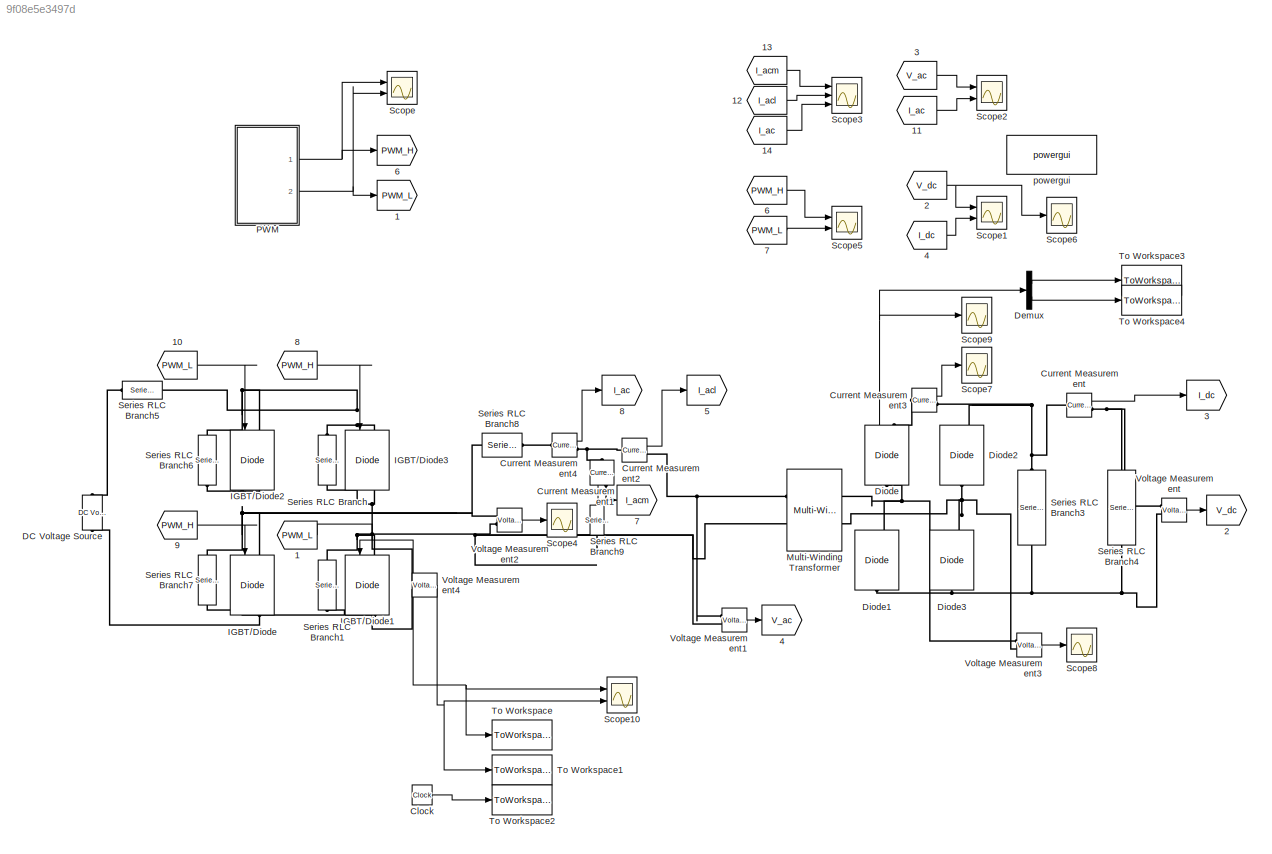
MODEL slx_9f08e5e3497d
KIND model
CONFIG AbsTol = auto
CONFIG EnableMultiTasking = off
CONFIG FixedStep = auto
CONFIG MaxStep = 1e-4
CONFIG MinStep = auto
CONFIG RelTol = 1e-3
CONFIG SampleTimeConstraint = Unconstrained
CONFIG Solver = ode23
CONFIG SolverName = ode23
CONFIG StartTime = 0.0
CONFIG StopTime = 0.05
BLOCK [From]       1
  GotoTag = PWM_L
  TagVisibility = global
BLOCK [From]       10
  GotoTag = PWM_L
  TagVisibility = global
BLOCK [From]       11
  GotoTag = I_ac
  TagVisibility = global
BLOCK [From]       12
  GotoTag = I_acl
  TagVisibility = global
BLOCK [From]       13
  GotoTag = I_acm
  TagVisibility = global
BLOCK [From]       14
  GotoTag = I_ac
  TagVisibility = global
BLOCK [From]       2
  GotoTag = V_dc
  TagVisibility = global
BLOCK [From]       3
  GotoTag = V_ac
  TagVisibility = global
BLOCK [From]       4
  GotoTag = I_dc
  TagVisibility = global
BLOCK [From]       6
  GotoTag = PWM_H
  TagVisibility = global
BLOCK [From]       7
  GotoTag = PWM_L
  TagVisibility = global
BLOCK [From]       8
  GotoTag = PWM_H
  TagVisibility = global
BLOCK [From]       9
  GotoTag = PWM_H
  TagVisibility = global
BLOCK [Goto]   1
  GotoTag = PWM_L
  TagVisibility = global
BLOCK [Goto]   2
  GotoTag = V_dc
  TagVisibility = global
BLOCK [Goto]   3
  GotoTag = I_dc
  TagVisibility = global
BLOCK [Goto]   4
  GotoTag = V_ac
  TagVisibility = global
BLOCK [Goto]   5
  GotoTag = I_acl
  TagVisibility = global
BLOCK [Goto]   6
  GotoTag = PWM_H
  TagVisibility = global
BLOCK [Goto]   7
  GotoTag = I_acm
  TagVisibility = global
BLOCK [Goto]   8
  GotoTag = I_ac
  TagVisibility = global
BLOCK [Clock] Clock
BLOCK [Reference] Current Measurement  REF=powerlib/Measurements/Current Measurement
  Ports = [0, 1, 0, 0, 0, 1, 1]
  SourceBlock = powerlib/Measurements/Current Measurement
  SourceProductBaseCode = PS
  SourceProductName = Simscape Electrical
  SourceType = Current Measurement
  UserDataPersistent = on
BLOCK [Reference] Current Measurement1  REF=powerlib/Measurements/Current Measurement
  Ports = [0, 1, 0, 0, 0, 1, 1]
  SourceBlock = powerlib/Measurements/Current Measurement
  SourceProductBaseCode = PS
  SourceProductName = Simscape Electrical
  SourceType = Current Measurement
  UserDataPersistent = on
BLOCK [Reference] Current Measurement2  REF=powerlib/Measurements/Current Measurement
  Ports = [0, 1, 0, 0, 0, 1, 1]
  SourceBlock = powerlib/Measurements/Current Measurement
  SourceProductBaseCode = PS
  SourceProductName = Simscape Electrical
  SourceType = Current Measurement
  UserDataPersistent = on
BLOCK [Reference] Current Measurement3  REF=powerlib/Measurements/Current Measurement
  Ports = [0, 1, 0, 0, 0, 1, 1]
  SourceBlock = powerlib/Measurements/Current Measurement
  SourceProductBaseCode = PS
  SourceProductName = Simscape Electrical
  SourceType = Current Measurement
  UserDataPersistent = on
BLOCK [Reference] Current Measurement4  REF=powerlib/Measurements/Current Measurement
  Ports = [0, 1, 0, 0, 0, 1, 1]
  SourceBlock = powerlib/Measurements/Current Measurement
  SourceProductBaseCode = PS
  SourceProductName = Simscape Electrical
  SourceType = Current Measurement
  UserDataPersistent = on
BLOCK [Reference] DC Voltage Source  REF=powerlib/Electrical
Sources/DC Voltage Source
  Ports = [0, 0, 0, 0, 0, 1, 1]
  SourceBlock = powerlib/Electrical\nSources/DC Voltage Source
  SourceProductBaseCode = PS
  SourceProductName = Simscape Electrical
  SourceType = DC Voltage Source
BLOCK [Demux] Demux
  DisplayOption = bar
  Outputs = 2
  Ports = [1, 2]
BLOCK [Reference] Diode  REF=powerlib/Power
Electronics/Diode
  Ports = [0, 1, 0, 0, 0, 1, 1]
  SourceBlock = powerlib/Power\nElectronics/Diode
  SourceProductBaseCode = PS
  SourceProductName = Simscape Electrical
  SourceType = Diode
BLOCK [Reference] Diode1  REF=powerlib/Power
Electronics/Diode
  Ports = [0, 1, 0, 0, 0, 1, 1]
  SourceBlock = powerlib/Power\nElectronics/Diode
  SourceProductBaseCode = PS
  SourceProductName = Simscape Electrical
  SourceType = Diode
BLOCK [Reference] Diode2  REF=powerlib/Power
Electronics/Diode
  Ports = [0, 1, 0, 0, 0, 1, 1]
  SourceBlock = powerlib/Power\nElectronics/Diode
  SourceProductBaseCode = PS
  SourceProductName = Simscape Electrical
  SourceType = Diode
BLOCK [Reference] Diode3  REF=powerlib/Power
Electronics/Diode
  Ports = [0, 1, 0, 0, 0, 1, 1]
  SourceBlock = powerlib/Power\nElectronics/Diode
  SourceProductBaseCode = PS
  SourceProductName = Simscape Electrical
  SourceType = Diode
BLOCK [Reference] IGBT//Diode  REF=powerlib/Power
Electronics/IGBT//Diode
  Ports = [1, 1, 0, 0, 0, 1, 1]
  SourceBlock = powerlib/Power\nElectronics/IGBT//Diode
  SourceProductBaseCode = PS
  SourceProductName = Simscape Power Systems
  SourceType = IGBT/Diode
BLOCK [Reference] IGBT//Diode1  REF=powerlib/Power
Electronics/IGBT//Diode
  Ports = [1, 1, 0, 0, 0, 1, 1]
  SourceBlock = powerlib/Power\nElectronics/IGBT//Diode
  SourceProductBaseCode = PS
  SourceProductName = Simscape Power Systems
  SourceType = IGBT/Diode
BLOCK [Reference] IGBT//Diode2  REF=powerlib/Power
Electronics/IGBT//Diode
  Ports = [1, 1, 0, 0, 0, 1, 1]
  SourceBlock = powerlib/Power\nElectronics/IGBT//Diode
  SourceProductBaseCode = PS
  SourceProductName = Simscape Power Systems
  SourceType = IGBT/Diode
BLOCK [Reference] IGBT//Diode3  REF=powerlib/Power
Electronics/IGBT//Diode
  Ports = [1, 1, 0, 0, 0, 1, 1]
  SourceBlock = powerlib/Power\nElectronics/IGBT//Diode
  SourceProductBaseCode = PS
  SourceProductName = Simscape Power Systems
  SourceType = IGBT/Diode
BLOCK [Reference] Multi-Winding Transformer  REF=powerlib/Elements/Multi-Winding
Transformer
  Ports = [0, 0, 0, 0, 0, 2, 2]
  SourceBlock = powerlib/Elements/Multi-Winding\nTransformer
  SourceProductBaseCode = PS
  SourceProductName = Simscape Power Systems
  SourceType = Multi-Winding Transformer
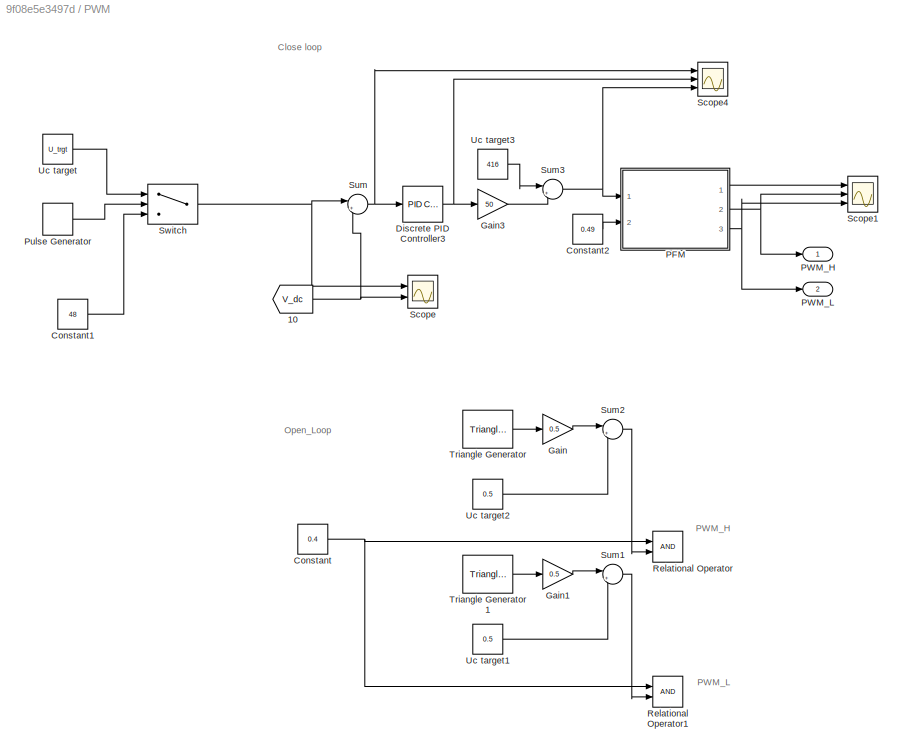
BLOCK [SubSystem] PWM
  Ports = [0, 2]
  RequestExecContextInheritance = off
BLOCK [From] PWM/      10
  GotoTag = V_dc
  TagVisibility = global
BLOCK [Constant] PWM/Constant
  Value = 0.4
BLOCK [Constant] PWM/Constant1
  Value = 48
BLOCK [Constant] PWM/Constant2
  Value = 0.49
BLOCK [Reference] PWM/Discrete PID Controller3  REF=simulink/Continuous/PID Controller
  Ports = [1, 1]
  SourceBlock = simulink/Continuous/PID Controller
  SourceProductBaseCode = SL
  SourceProductName = Simulink
  SourceType = PID 1dof
BLOCK [Gain] PWM/Gain
  Gain = 0.5
  OutDataTypeStr = Inherit: Inherit via internal rule
  ParamDataTypeStr = Inherit: Inherit via internal rule
  SaturateOnIntegerOverflow = off
BLOCK [Gain] PWM/Gain1
  Gain = 0.5
  OutDataTypeStr = Inherit: Inherit via internal rule
  ParamDataTypeStr = Inherit: Inherit via internal rule
  SaturateOnIntegerOverflow = off
BLOCK [Gain] PWM/Gain3
  Gain = 50
  OutDataTypeStr = Inherit: Inherit via internal rule
  ParamDataTypeStr = Inherit: Inherit via internal rule
  SaturateOnIntegerOverflow = off
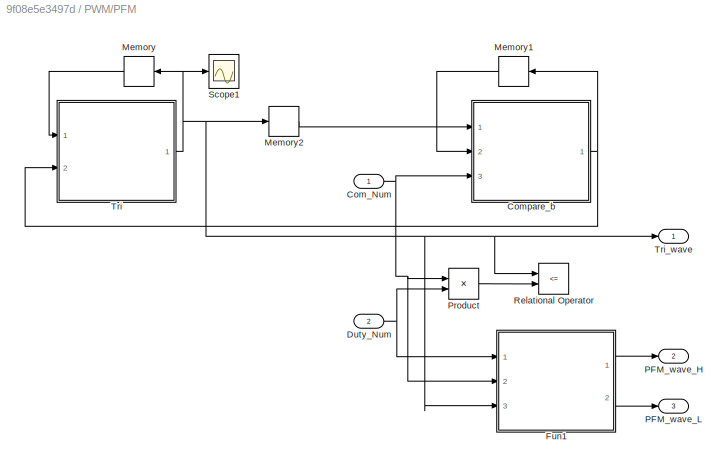
BLOCK [SubSystem] PWM/PFM
  Ports = [2, 3]
  RequestExecContextInheritance = off
BLOCK [Inport] PWM/PFM/Com_Num
  IconDisplay = Port number
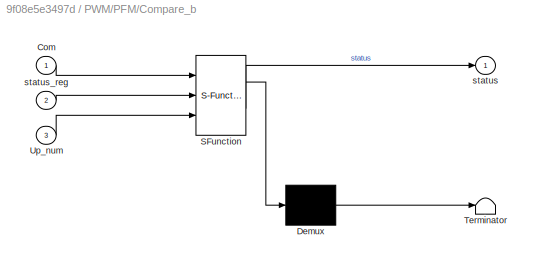
BLOCK [SubSystem] PWM/PFM/Compare_b
  ErrorFcn = Stateflow.Translate.translate
  PermitHierarchicalResolution = ExplicitOnly
  Ports = [3, 1]
  RequestExecContextInheritance = off
  SFBlockType = MATLAB Function
  TreatAsAtomicUnit = on
BLOCK [Demux] PWM/PFM/Compare_b/ Demux 
  Outputs = 1
  Ports = [1, 1]
BLOCK [S-Function] PWM/PFM/Compare_b/ SFunction 
  EnableBusSupport = on
  FunctionName = sf_sfun
  PortCounts = [3 2]
  Ports = [3, 2]
  SFcnIsStateOwnerBlock = off
  SFunctionDeploymentMode = off
  Tag = Stateflow S-Function DCACDC 2
BLOCK [Terminator] PWM/PFM/Compare_b/ Terminator 
BLOCK [Inport] PWM/PFM/Compare_b/Com
  IconDisplay = Port number
BLOCK [Inport] PWM/PFM/Compare_b/Up_num
  IconDisplay = Port number
  Port = 3
BLOCK [Outport] PWM/PFM/Compare_b/status
  IconDisplay = Port number
BLOCK [Inport] PWM/PFM/Compare_b/status_reg
  IconDisplay = Port number
  Port = 2
BLOCK [Inport] PWM/PFM/Duty_Num
  IconDisplay = Port number
  Port = 2
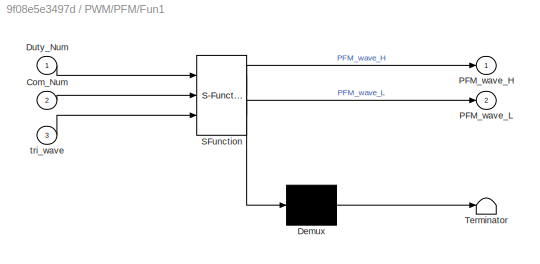
BLOCK [SubSystem] PWM/PFM/Fun1
  ErrorFcn = Stateflow.Translate.translate
  PermitHierarchicalResolution = ExplicitOnly
  Ports = [3, 2]
  RequestExecContextInheritance = off
  SFBlockType = MATLAB Function
  TreatAsAtomicUnit = on
BLOCK [Demux] PWM/PFM/Fun1/ Demux 
  Outputs = 1
  Ports = [1, 1]
BLOCK [S-Function] PWM/PFM/Fun1/ SFunction 
  EnableBusSupport = on
  FunctionName = sf_sfun
  PortCounts = [3 3]
  Ports = [3, 3]
  SFcnIsStateOwnerBlock = off
  SFunctionDeploymentMode = off
  Tag = Stateflow S-Function DCACDC 3
BLOCK [Terminator] PWM/PFM/Fun1/ Terminator 
BLOCK [Inport] PWM/PFM/Fun1/Com_Num
  IconDisplay = Port number
  Port = 2
BLOCK [Inport] PWM/PFM/Fun1/Duty_Num
  IconDisplay = Port number
BLOCK [Outport] PWM/PFM/Fun1/PFM_wave_H
  IconDisplay = Port number
BLOCK [Outport] PWM/PFM/Fun1/PFM_wave_L
  IconDisplay = Port number
  Port = 2
BLOCK [Inport] PWM/PFM/Fun1/tri_wave
  IconDisplay = Port number
  Port = 3
BLOCK [Memory] PWM/PFM/Memory
BLOCK [Memory] PWM/PFM/Memory1
BLOCK [Memory] PWM/PFM/Memory2
BLOCK [Outport] PWM/PFM/PFM_wave_H
  IconDisplay = Port number
  Port = 2
BLOCK [Outport] PWM/PFM/PFM_wave_L
  IconDisplay = Port number
  Port = 3
BLOCK [Product] PWM/PFM/Product
  InputSameDT = off
  OutDataTypeStr = Inherit: Inherit via internal rule
  Ports = [2, 1]
  RndMeth = Floor
  SaturateOnIntegerOverflow = off
BLOCK [RelationalOperator] PWM/PFM/Relational Operator
  InputSameDT = off
  Operator = <=
  OutDataTypeStr = boolean
  Ports = [2, 1]
  RndMeth = Simplest
BLOCK [Scope] PWM/PFM/Scope1
  Floating = off
  NumInputPorts = 1
  Ports = [1]
  ScopeSpecificationString = Simulink.scopes.TimeScopeBlockCfg('CurrentConfiguration', extmgr.ConfigurationSet(extmgr.Configuration('Core','General UI',true),extmgr.Configuration('Core','Source UI',true),extmgr.Configuration('Sources','WiredSimulink',true,'DataLoggingVariableName','ScopeData1'),extmgr.Configuration('Visuals','Time Domain',true,'SerializedDisplays',{struct('MinYLimReal','-188.75','MaxYLimReal','1688.75','YLabe...<+1534ch>
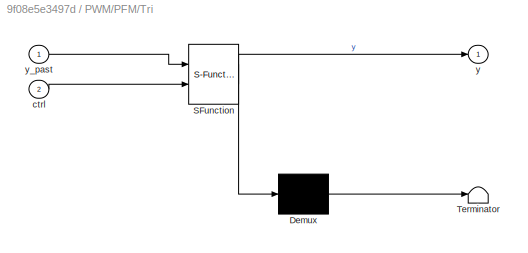
BLOCK [SubSystem] PWM/PFM/Tri
  ErrorFcn = Stateflow.Translate.translate
  PermitHierarchicalResolution = ExplicitOnly
  Ports = [2, 1]
  RequestExecContextInheritance = off
  SFBlockType = MATLAB Function
  TreatAsAtomicUnit = on
BLOCK [Demux] PWM/PFM/Tri/ Demux 
  Outputs = 1
  Ports = [1, 1]
BLOCK [S-Function] PWM/PFM/Tri/ SFunction 
  EnableBusSupport = on
  FunctionName = sf_sfun
  PortCounts = [2 2]
  Ports = [2, 2]
  SFcnIsStateOwnerBlock = off
  SFunctionDeploymentMode = off
  Tag = Stateflow S-Function DCACDC 1
BLOCK [Terminator] PWM/PFM/Tri/ Terminator 
BLOCK [Inport] PWM/PFM/Tri/ctrl
  IconDisplay = Port number
  Port = 2
BLOCK [Outport] PWM/PFM/Tri/y
  IconDisplay = Port number
BLOCK [Inport] PWM/PFM/Tri/y_past
  IconDisplay = Port number
BLOCK [Outport] PWM/PFM/Tri_wave
  IconDisplay = Port number
BLOCK [Outport] PWM/PWM_H
  IconDisplay = Port number
BLOCK [Outport] PWM/PWM_L
  IconDisplay = Port number
  Port = 2
BLOCK [DiscretePulseGenerator] PWM/Pulse Generator
  Period = 0.005
  Ports = [0, 1]
  PulseType = Time based
  PulseWidth = 50
BLOCK [RelationalOperator] PWM/Relational Operator
  InputSameDT = off
  OutDataTypeStr = boolean
  Ports = [2, 1]
  RndMeth = Simplest
BLOCK [RelationalOperator] PWM/Relational Operator1
  InputSameDT = off
  OutDataTypeStr = boolean
  Ports = [2, 1]
  RndMeth = Simplest
BLOCK [Scope] PWM/Scope
  Floating = off
  NumInputPorts = 2
  Ports = [2]
  ScopeSpecificationString = Simulink.scopes.TimeScopeBlockCfg('CurrentConfiguration', extmgr.ConfigurationSet(extmgr.Configuration('Core','General UI',true,'FigureColor',[1 1 1]),extmgr.Configuration('Core','Source UI',true),extmgr.Configuration('Sources','WiredSimulink',true,'DataLoggingVariableName','ScopeData1'),extmgr.Configuration('Visuals','Time Domain',true,'SerializedDisplays',{struct('MinYLimReal','0.00000','MaxYLim...<+2298ch>
BLOCK [Scope] PWM/Scope1
  Floating = off
  NumInputPorts = 3
  Ports = [3]
  ScopeSpecificationString = Simulink.scopes.TimeScopeBlockCfg('CurrentConfiguration', extmgr.ConfigurationSet(extmgr.Configuration('Core','General UI',true),extmgr.Configuration('Core','Source UI',true),extmgr.Configuration('Sources','WiredSimulink',true,'DataLoggingVariableName','ScopeData2'),extmgr.Configuration('Visuals','Time Domain',true,'SerializedDisplays',{struct('MinYLimReal','-188.75','MaxYLimReal','1688.75','YLabe...<+2541ch>
BLOCK [Scope] PWM/Scope4
  Floating = off
  NumInputPorts = 3
  Ports = [3]
  ScopeSpecificationString = Simulink.scopes.TimeScopeBlockCfg('CurrentConfiguration', extmgr.ConfigurationSet(extmgr.Configuration('Core','General UI',true),extmgr.Configuration('Core','Source UI',true),extmgr.Configuration('Sources','WiredSimulink',true,'DataLoggingVariableName','ScopeData6'),extmgr.Configuration('Visuals','Time Domain',true,'SerializedDisplays',{struct('MinYLimReal','-7.4483','MaxYLimReal','67.49426','YLab...<+2812ch>
BLOCK [Sum] PWM/Sum
  IconShape = round
  InputSameDT = off
  Inputs = |+-
  OutDataTypeStr = Inherit: Inherit via internal rule
  Ports = [2, 1]
  SaturateOnIntegerOverflow = off
BLOCK [Sum] PWM/Sum1
  IconShape = round
  InputSameDT = off
  Inputs = |++
  OutDataTypeStr = Inherit: Inherit via internal rule
  Ports = [2, 1]
  SaturateOnIntegerOverflow = off
BLOCK [Sum] PWM/Sum2
  IconShape = round
  InputSameDT = off
  Inputs = |++
  OutDataTypeStr = Inherit: Inherit via internal rule
  Ports = [2, 1]
  SaturateOnIntegerOverflow = off
BLOCK [Sum] PWM/Sum3
  IconShape = round
  InputSameDT = off
  Inputs = |++
  OutDataTypeStr = Inherit: Inherit via internal rule
  Ports = [2, 1]
  SaturateOnIntegerOverflow = off
BLOCK [Switch] PWM/Switch
  Criteria = u2 > Threshold
  InputSameDT = off
  SaturateOnIntegerOverflow = off
BLOCK [Reference] PWM/Triangle Generator  REF=powerlib_meascontrol/Pulse & Signal
Generators/Triangle
Generator
  Ports = [0, 1]
  SourceBlock = powerlib_meascontrol/Pulse & Signal\nGenerators/Triangle\nGenerator
  SourceProductBaseCode = PS
  SourceProductName = Simscape Electrical
  SourceType = Triangle Generator
BLOCK [Reference] PWM/Triangle Generator1  REF=powerlib_meascontrol/Pulse & Signal
Generators/Triangle
Generator
  Ports = [0, 1]
  SourceBlock = powerlib_meascontrol/Pulse & Signal\nGenerators/Triangle\nGenerator
  SourceProductBaseCode = PS
  SourceProductName = Simscape Electrical
  SourceType = Triangle Generator
BLOCK [Constant] PWM/Uc target
  Value = U_trgt
BLOCK [Constant] PWM/Uc target1
  Value = 0.5
BLOCK [Constant] PWM/Uc target2
  Value = 0.5
BLOCK [Constant] PWM/Uc target3
  Value = 416
BLOCK [Scope] Scope
  Floating = off
  NumInputPorts = 2
  Ports = [2]
  ScopeSpecificationString = Simulink.scopes.TimeScopeBlockCfg('CurrentConfiguration', extmgr.ConfigurationSet(extmgr.Configuration('Core','General UI',true),extmgr.Configuration('Core','Source UI',true),extmgr.Configuration('Sources','WiredSimulink',true),extmgr.Configuration('Visuals','Time Domain',true,'SerializedDisplays',{struct('MinYLimReal','-0.125','MaxYLimReal','1.125','YLabelReal','','MinYLimMag','0.00000','MaxYLimM...<+2063ch>
BLOCK [Scope] Scope1
  Floating = off
  NumInputPorts = 2
  Ports = [2]
  ScopeSpecificationString = Simulink.scopes.TimeScopeBlockCfg('CurrentConfiguration', extmgr.ConfigurationSet(extmgr.Configuration('Core','General UI',true),extmgr.Configuration('Core','Source UI',true),extmgr.Configuration('Sources','WiredSimulink',true,'DataLoggingVariableName','ScopeData1'),extmgr.Configuration('Visuals','Time Domain',true,'SerializedDisplays',{struct('MinYLimReal','-6.19705','MaxYLimReal','55.77345','YLa...<+2459ch>
BLOCK [Scope] Scope10
  Floating = off
  NumInputPorts = 2
  Ports = [2]
  ScopeSpecificationString = Simulink.scopes.TimeScopeBlockCfg('CurrentConfiguration', extmgr.ConfigurationSet(extmgr.Configuration('Core','General UI',true),extmgr.Configuration('Core','Source UI',true),extmgr.Configuration('Sources','WiredSimulink',true,'DataLoggingVariableName','ScopeData2'),extmgr.Configuration('Visuals','Time Domain',true,'SerializedDisplays',{struct('MinYLimReal','-1.7427','MaxYLimReal','6.00146','YLabe...<+1930ch>
BLOCK [Scope] Scope2
  Floating = off
  NumInputPorts = 2
  Ports = [2]
  ScopeSpecificationString = Simulink.scopes.TimeScopeBlockCfg('CurrentConfiguration', extmgr.ConfigurationSet(extmgr.Configuration('Core','General UI',true),extmgr.Configuration('Core','Source UI',true),extmgr.Configuration('Sources','WiredSimulink',true,'DataLoggingVariableName','ScopeData2'),extmgr.Configuration('Visuals','Time Domain',true,'SerializedDisplays',{struct('MinYLimReal','-1946.40816','MaxYLimReal','1812.43053'...<+2522ch>
BLOCK [Scope] Scope3
  Floating = off
  NumInputPorts = 3
  Ports = [3]
  ScopeSpecificationString = Simulink.scopes.TimeScopeBlockCfg('CurrentConfiguration', extmgr.ConfigurationSet(extmgr.Configuration('Core','General UI',true),extmgr.Configuration('Core','Source UI',true),extmgr.Configuration('Sources','WiredSimulink',true,'DataLoggingVariableName','ScopeData1'),extmgr.Configuration('Visuals','Time Domain',true,'SerializedDisplays',{struct('MinYLimReal','-6.77319','MaxYLimReal','6.99202','YLab...<+3304ch>
BLOCK [Scope] Scope4
  Floating = off
  NumInputPorts = 1
  Ports = [1]
  ScopeSpecificationString = Simulink.scopes.TimeScopeBlockCfg('CurrentConfiguration', extmgr.ConfigurationSet(extmgr.Configuration('Core','General UI',true),extmgr.Configuration('Core','Source UI',true),extmgr.Configuration('Sources','WiredSimulink',true,'DataLoggingVariableName','ScopeData1'),extmgr.Configuration('Visuals','Time Domain',true,'SerializedDisplays',{struct('MinYLimReal','-500.2451','MaxYLimReal','500.2451','YL...<+1560ch>
BLOCK [Scope] Scope5
  Floating = off
  NumInputPorts = 2
  Ports = [2]
  ScopeSpecificationString = Simulink.scopes.TimeScopeBlockCfg('CurrentConfiguration', extmgr.ConfigurationSet(extmgr.Configuration('Core','General UI',true),extmgr.Configuration('Core','Source UI',true),extmgr.Configuration('Sources','WiredSimulink',true,'DataLoggingVariableName','ScopeData1'),extmgr.Configuration('Visuals','Time Domain',true,'SerializedDisplays',{struct('MinYLimReal','-0.125','MaxYLimReal','1.125','YLabelRe...<+2014ch>
BLOCK [Scope] Scope6
  Floating = off
  NumInputPorts = 1
  Ports = [1]
  ScopeSpecificationString = Simulink.scopes.TimeScopeBlockCfg('CurrentConfiguration', extmgr.ConfigurationSet(extmgr.Configuration('Core','General UI',true,'FigureColor',[1 1 1]),extmgr.Configuration('Core','Source UI',true),extmgr.Configuration('Sources','WiredSimulink',true,'DataLoggingVariableName','ScopeData1'),extmgr.Configuration('Visuals','Time Domain',true,'SerializedDisplays',{struct('MinYLimReal','-6.14579','MaxYLi...<+2081ch>
BLOCK [Scope] Scope7
  Floating = off
  NumInputPorts = 1
  Ports = [1]
  ScopeSpecificationString = Simulink.scopes.TimeScopeBlockCfg('CurrentConfiguration', extmgr.ConfigurationSet(extmgr.Configuration('Core','General UI',true),extmgr.Configuration('Core','Source UI',true),extmgr.Configuration('Sources','WiredSimulink',true,'DataLoggingVariableName','ScopeData2'),extmgr.Configuration('Visuals','Time Domain',true,'SerializedDisplays',{struct('MinYLimReal','-1.82353','MaxYLimReal','15.85756','YLa...<+1865ch>
BLOCK [Scope] Scope8
  Floating = off
  NumInputPorts = 1
  Ports = [1]
  ScopeSpecificationString = Simulink.scopes.TimeScopeBlockCfg('CurrentConfiguration', extmgr.ConfigurationSet(extmgr.Configuration('Core','General UI',true),extmgr.Configuration('Core','Source UI',true),extmgr.Configuration('Sources','WiredSimulink',true,'DataLoggingVariableName','ScopeData3'),extmgr.Configuration('Visuals','Time Domain',true,'SerializedDisplays',{struct('MinYLimReal','-180.78103','MaxYLimReal','180.70755','...<+1567ch>
BLOCK [Scope] Scope9
  Floating = off
  NumInputPorts = 1
  Ports = [1]
  ScopeSpecificationString = Simulink.scopes.TimeScopeBlockCfg('CurrentConfiguration', extmgr.ConfigurationSet(extmgr.Configuration('Core','General UI',true),extmgr.Configuration('Core','Source UI',true),extmgr.Configuration('Sources','WiredSimulink',true,'DataLoggingVariableName','ScopeData1'),extmgr.Configuration('Visuals','Time Domain',true,'SerializedDisplays',{struct('MinYLimReal','-57.63777','MaxYLimReal','21.90799','YL...<+1896ch>
BLOCK [Reference] Series RLC Branch  REF=powerlib/Elements/Series RLC Branch
  Ports = [0, 0, 0, 0, 0, 1, 1]
  SourceBlock = powerlib/Elements/Series RLC Branch
  SourceProductBaseCode = PS
  SourceProductName = Simscape Electrical
  SourceType = Series RLC Branch
BLOCK [Reference] Series RLC Branch1  REF=powerlib/Elements/Series RLC Branch
  Ports = [0, 0, 0, 0, 0, 1, 1]
  SourceBlock = powerlib/Elements/Series RLC Branch
  SourceProductBaseCode = PS
  SourceProductName = Simscape Electrical
  SourceType = Series RLC Branch
BLOCK [Reference] Series RLC Branch3  REF=powerlib/Elements/Series RLC Branch
  Ports = [0, 0, 0, 0, 0, 1, 1]
  SourceBlock = powerlib/Elements/Series RLC Branch
  SourceProductBaseCode = PS
  SourceProductName = Simscape Electrical
  SourceType = Series RLC Branch
BLOCK [Reference] Series RLC Branch4  REF=powerlib/Elements/Series RLC Branch
  Ports = [0, 0, 0, 0, 0, 1, 1]
  SourceBlock = powerlib/Elements/Series RLC Branch
  SourceProductBaseCode = PS
  SourceProductName = Simscape Electrical
  SourceType = Series RLC Branch
BLOCK [Reference] Series RLC Branch5  REF=powerlib/Elements/Series RLC Branch
  Ports = [0, 0, 0, 0, 0, 1, 1]
  SourceBlock = powerlib/Elements/Series RLC Branch
  SourceProductBaseCode = PS
  SourceProductName = Simscape Electrical
  SourceType = Series RLC Branch
BLOCK [Reference] Series RLC Branch6  REF=powerlib/Elements/Series RLC Branch
  Ports = [0, 0, 0, 0, 0, 1, 1]
  SourceBlock = powerlib/Elements/Series RLC Branch
  SourceProductBaseCode = PS
  SourceProductName = Simscape Electrical
  SourceType = Series RLC Branch
BLOCK [Reference] Series RLC Branch7  REF=powerlib/Elements/Series RLC Branch
  Ports = [0, 0, 0, 0, 0, 1, 1]
  SourceBlock = powerlib/Elements/Series RLC Branch
  SourceProductBaseCode = PS
  SourceProductName = Simscape Electrical
  SourceType = Series RLC Branch
BLOCK [Reference] Series RLC Branch8  REF=powerlib/Elements/Series RLC Branch
  Ports = [0, 0, 0, 0, 0, 1, 1]
  SourceBlock = powerlib/Elements/Series RLC Branch
  SourceProductBaseCode = PS
  SourceProductName = Simscape Electrical
  SourceType = Series RLC Branch
BLOCK [Reference] Series RLC Branch9  REF=powerlib/Elements/Series RLC Branch
  Ports = [0, 0, 0, 0, 0, 1, 1]
  SourceBlock = powerlib/Elements/Series RLC Branch
  SourceProductBaseCode = PS
  SourceProductName = Simscape Electrical
  SourceType = Series RLC Branch
BLOCK [ToWorkspace] To Workspace
  FixptAsFi = on
  MaxDataPoints = inf
  Ports = [1]
  SampleTime = -1
  Save2DSignal = 3-D array (concatenate along third dimension)
  SaveFormat = Timeseries
  VariableName = tri
BLOCK [ToWorkspace] To Workspace1
  FixptAsFi = on
  MaxDataPoints = inf
  Ports = [1]
  SampleTime = -1
  Save2DSignal = 3-D array (concatenate along third dimension)
  SaveFormat = Timeseries
  VariableName = voltage
BLOCK [ToWorkspace] To Workspace2
  FixptAsFi = on
  MaxDataPoints = inf
  Ports = [1]
  SampleTime = -1
  Save2DSignal = 3-D array (concatenate along third dimension)
  SaveFormat = Timeseries
  VariableName = time
BLOCK [ToWorkspace] To Workspace3
  FixptAsFi = on
  MaxDataPoints = inf
  Ports = [1]
  SampleTime = -1
  Save2DSignal = 3-D array (concatenate along third dimension)
  SaveFormat = Timeseries
  VariableName = current_s
BLOCK [ToWorkspace] To Workspace4
  FixptAsFi = on
  MaxDataPoints = inf
  Ports = [1]
  SampleTime = -1
  Save2DSignal = 3-D array (concatenate along third dimension)
  SaveFormat = Timeseries
  VariableName = voltage_s
BLOCK [Reference] Voltage Measurement  REF=powerlib/Measurements/Voltage Measurement
  Ports = [0, 1, 0, 0, 0, 2]
  SourceBlock = powerlib/Measurements/Voltage Measurement
  SourceProductBaseCode = PS
  SourceProductName = Simscape Electrical
  SourceType = Voltage Measurement
  UserDataPersistent = on
BLOCK [Reference] Voltage Measurement1  REF=powerlib/Measurements/Voltage Measurement
  Ports = [0, 1, 0, 0, 0, 2]
  SourceBlock = powerlib/Measurements/Voltage Measurement
  SourceProductBaseCode = PS
  SourceProductName = Simscape Electrical
  SourceType = Voltage Measurement
  UserDataPersistent = on
BLOCK [Reference] Voltage Measurement2  REF=powerlib/Measurements/Voltage Measurement
  Ports = [0, 1, 0, 0, 0, 2]
  SourceBlock = powerlib/Measurements/Voltage Measurement
  SourceProductBaseCode = PS
  SourceProductName = Simscape Electrical
  SourceType = Voltage Measurement
  UserDataPersistent = on
BLOCK [Reference] Voltage Measurement3  REF=powerlib/Measurements/Voltage Measurement
  Ports = [0, 1, 0, 0, 0, 2]
  SourceBlock = powerlib/Measurements/Voltage Measurement
  SourceProductBaseCode = PS
  SourceProductName = Simscape Electrical
  SourceType = Voltage Measurement
  UserDataPersistent = on
BLOCK [Reference] Voltage Measurement4  REF=powerlib/Measurements/Voltage Measurement
  Ports = [0, 1, 0, 0, 0, 2]
  SourceBlock = powerlib/Measurements/Voltage Measurement
  SourceProductBaseCode = PS
  SourceProductName = Simscape Electrical
  SourceType = Voltage Measurement
  UserDataPersistent = on
BLOCK [Reference] powergui  REF=powerlib/powergui
  Ports = []
  SourceBlock = powerlib/powergui
  SourceProductBaseCode = PS
  SourceProductName = Simscape Power Systems
  SourceType = PSB option menu block
ANNOTATION PWM: Close loop
ANNOTATION PWM: Open_Loop
ANNOTATION PWM: PWM_H
ANNOTATION PWM: PWM_L
LINE       10:1 -> IGBT//Diode2:1
LINE       11:1 -> Scope2:2
LINE       12:1 -> Scope3:2
LINE       13:1 -> Scope3:1
LINE       14:1 -> Scope3:3
NET       1:1 -> IGBT//Diode1:1, Scope10:1, To Workspace:1
NET       2:1 -> Scope1:1, Scope6:1
LINE       3:1 -> Scope2:1
LINE       4:1 -> Scope1:2
LINE       6:1 -> Scope5:1
LINE       7:1 -> Scope5:2
LINE       8:1 -> IGBT//Diode3:1
LINE       9:1 -> IGBT//Diode:1
LINE Clock:1 -> To Workspace2:1
LINE Current Measurement1:1 ->   7:1
LINE Current Measurement2:1 ->   5:1
LINE Current Measurement3:1 -> Scope7:1
LINE Current Measurement4:1 ->   8:1
LINE Current Measurement:1 ->   3:1
LINE Demux:1 -> To Workspace3:1
LINE Demux:2 -> To Workspace4:1
NET Diode:1 -> Demux:1, Scope9:1
NET PWM/      10:1 -> PWM/Scope:2, PWM/Sum:2
LINE PWM/Constant1:1 -> PWM/Switch:3
LINE PWM/Constant2:1 -> PWM/PFM:2
NET PWM/Constant:1 -> PWM/Relational Operator1:1, PWM/Relational Operator:1
NET PWM/Discrete PID Controller3:1 -> PWM/Gain3:1, PWM/Scope4:2
LINE PWM/Gain1:1 -> PWM/Sum1:1
LINE PWM/Gain3:1 -> PWM/Sum3:2
LINE PWM/Gain:1 -> PWM/Sum2:1
NET PWM/PFM/Com_Num:1 -> PWM/PFM/Compare_b:3, PWM/PFM/Fun1:2, PWM/PFM/Product:1
NET PWM/PFM/Compare_b:1 -> PWM/PFM/Memory1:1, PWM/PFM/Tri:2
NET PWM/PFM/Duty_Num:1 -> PWM/PFM/Fun1:1, PWM/PFM/Product:2
LINE PWM/PFM/Fun1:1 -> PWM/PFM/PFM_wave_H:1
LINE PWM/PFM/Fun1:2 -> PWM/PFM/PFM_wave_L:1
LINE PWM/PFM/Memory1:1 -> PWM/PFM/Compare_b:2
LINE PWM/PFM/Memory2:1 -> PWM/PFM/Compare_b:1
LINE PWM/PFM/Memory:1 -> PWM/PFM/Tri:1
LINE PWM/PFM/Product:1 -> PWM/PFM/Relational Operator:2
NET PWM/PFM/Tri:1 -> PWM/PFM/Fun1:3, PWM/PFM/Memory2:1, PWM/PFM/Memory:1, PWM/PFM/Relational Operator:1, PWM/PFM/Scope1:1, PWM/PFM/Tri_wave:1
LINE PWM/PFM:1 -> PWM/Scope1:1
NET PWM/PFM:2 -> PWM/PWM_H:1, PWM/Scope1:2
NET PWM/PFM:3 -> PWM/PWM_L:1, PWM/Scope1:3
LINE PWM/Pulse Generator:1 -> PWM/Switch:2
LINE PWM/Sum1:1 -> PWM/Relational Operator1:2
LINE PWM/Sum2:1 -> PWM/Relational Operator:2
NET PWM/Sum3:1 -> PWM/PFM:1, PWM/Scope4:3
NET PWM/Sum:1 -> PWM/Discrete PID Controller3:1, PWM/Scope4:1
NET PWM/Switch:1 -> PWM/Scope:1, PWM/Sum:1
LINE PWM/Triangle Generator1:1 -> PWM/Gain1:1
LINE PWM/Triangle Generator:1 -> PWM/Gain:1
LINE PWM/Uc target1:1 -> PWM/Sum1:2
LINE PWM/Uc target2:1 -> PWM/Sum2:2
LINE PWM/Uc target3:1 -> PWM/Sum3:1
LINE PWM/Uc target:1 -> PWM/Switch:1
NET PWM:1 ->   6:1, Scope:1
NET PWM:2 ->   1:1, Scope:2
LINE Voltage Measurement1:1 ->   4:1
LINE Voltage Measurement2:1 -> Scope4:1
LINE Voltage Measurement3:1 -> Scope8:1
NET Voltage Measurement4:1 -> Scope10:2, To Workspace1:1
LINE Voltage Measurement:1 ->   2:1
PNET net1: Current Measurement1:LConn1 -- Current Measurement2:LConn1 -- Current Measurement4:RConn1
PLINE Current Measurement1:RConn1 -- Series RLC Branch9:RConn1
PNET net2: Current Measurement2:RConn1 -- Multi-Winding Transformer:LConn1 -- Voltage Measurement1:LConn1
PLINE Current Measurement3:LConn1 -- Diode:RConn1
PNET net3: Current Measurement3:RConn1 -- Current Measurement:LConn1 -- Diode2:RConn1 -- Series RLC Branch3:LConn1
PLINE Current Measurement4:LConn1 -- Series RLC Branch8:LConn1
PNET net4: Current Measurement:RConn1 -- Series RLC Branch4:LConn1 -- Voltage Measurement:LConn1
PNET net5: DC Voltage Source:LConn1 -- IGBT//Diode1:RConn1 -- IGBT//Diode:RConn1 -- Series RLC Branch1:RConn1 -- Series RLC Branch7:RConn1 -- Voltage Measurement4:LConn2
PLINE DC Voltage Source:RConn1 -- Series RLC Branch5:RConn1
PNET net6: Diode1:LConn1 -- Diode3:LConn1 -- Series RLC Branch3:RConn1 -- Series RLC Branch4:RConn1 -- Voltage Measurement:LConn2
PNET net7: Diode1:RConn1 -- Diode:LConn1 -- Multi-Winding Transformer:RConn1 -- Voltage Measurement3:LConn1
PNET net8: Diode2:LConn1 -- Diode3:RConn1 -- Multi-Winding Transformer:RConn2 -- Voltage Measurement3:LConn2
PNET net9: IGBT//Diode1:LConn1 -- IGBT//Diode3:RConn1 -- Multi-Winding Transformer:LConn2 -- Series RLC Branch1:LConn1 -- Series RLC Branch9:LConn1 -- Series RLC Branch:RConn1 -- Voltage Measurement1:LConn2 -- Voltage Measurement2:LConn2 -- Voltage Measurement4:LConn1
PNET net10: IGBT//Diode2:LConn1 -- IGBT//Diode3:LConn1 -- Series RLC Branch5:LConn1 -- Series RLC Branch6:LConn1 -- Series RLC Branch:LConn1
PNET net11: IGBT//Diode2:RConn1 -- IGBT//Diode:LConn1 -- Series RLC Branch6:RConn1 -- Series RLC Branch7:LConn1 -- Series RLC Branch8:RConn1 -- Voltage Measurement2:LConn1
note: NET lines group one-source signal fan-out (src -> all destinations, sorted); 1:1 wires keep LINE; PNET lines group multi-terminal physical nets as a canonical sorted terminal list (undirected conserving connections); 2-terminal nets keep the pairwise PLINE form
CHART PWM/PFM/Tri states=1 transitions=1
  STATE_LABEL 'eML_blk_kernel()'
  STATE_LABEL 'SCRIPT:\nfunction y  = Tri(y_past, ctrl)\nif ctrl == 1\n    y = y_past + 1;\nelseif ctrl == 0\n    y = y_past - 1;\nelse\n    y = y_past;\nend\nend'
CHART PWM/PFM/Compare_b states=1 transitions=1
  STATE_LABEL 'eML_blk_kernel()'
  STATE_LABEL 'SCRIPT:\nfunction status  = Tri(Com, status_reg, Up_num)\nif Com > Up_num\n    status = 0;\nelseif Com < 0\n    status = 1;\nelse \n    status = status_reg;\nend'
CHART PWM/PFM/Fun1 states=1 transitions=1
  STATE_LABEL 'eML_blk_kernel()'
  STATE_LABEL 'SCRIPT:\nfunction [PFM_wave_H,PFM_wave_L] = Tri(Duty_Num, Com_Num, tri_wave)\nPFM_wave_H = (tri_wave)<=(Duty_Num*Com_Num);\nPFM_wave_L = (tri_wave)>=((1-Duty_Num)*Com_Num);\nend'
